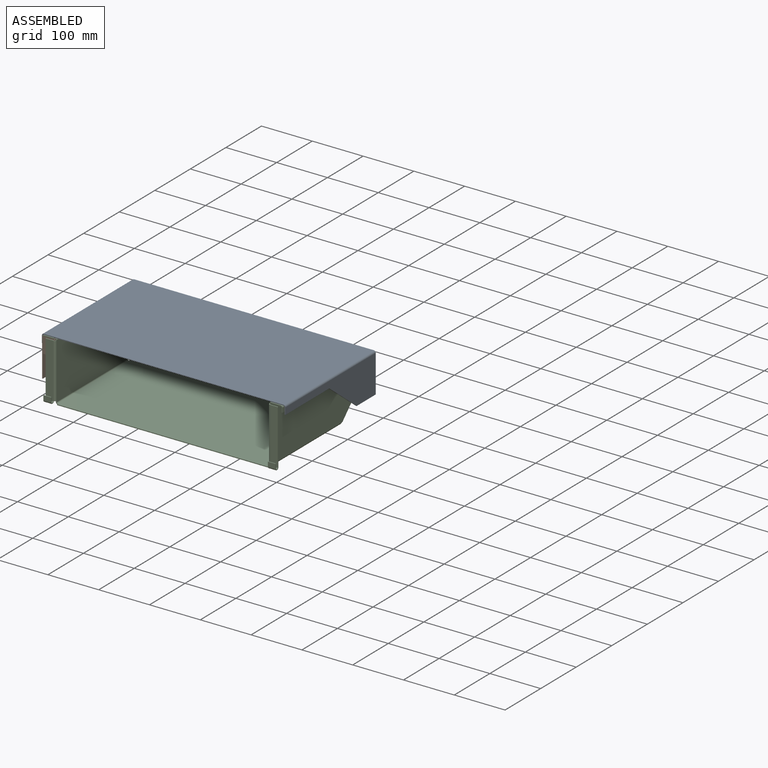
[diagram: assembled view]
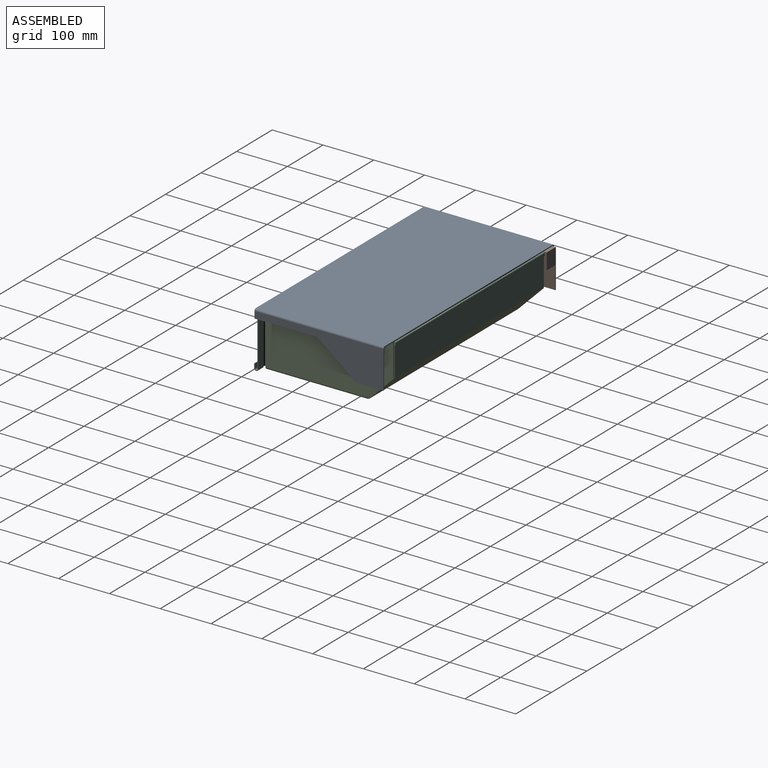
[diagram: assembled view, second angle]
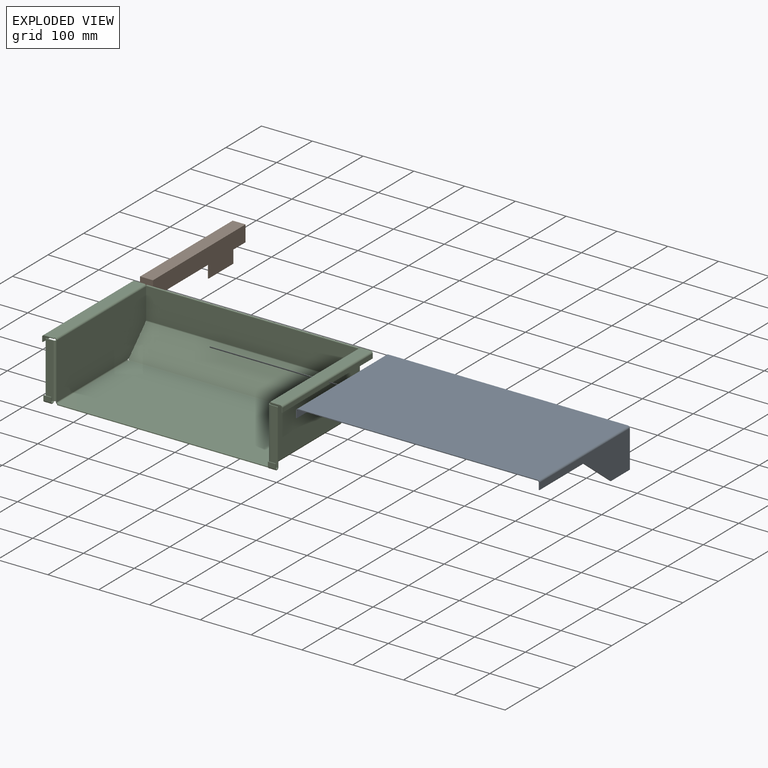
[diagram: exploded view]
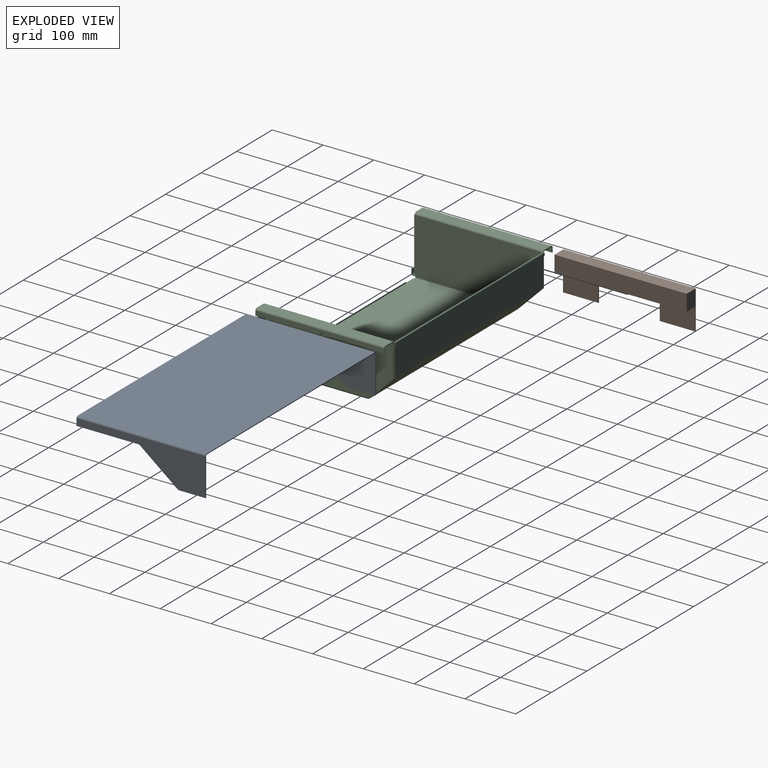
[diagram: exploded view, second angle]
ASSEMBLY  parts=3 mates=6
PART A: 26 faces, bbox 479.4x254x77.8 mm
  f0: plane 471.68x1.59mm, normal (0,1,0), area 748.8mm2, adj f2,f3,f11,f22
  f1: plane 471.68x1.59mm, normal (0,-1,0), area 748.8mm2, adj f2,f3,f12,f23
  f2: plane 471.68x254mm, normal (0,0,-1), area 119806.2mm2, adj f0,f1,f13,f24
  f3: plane 471.68x254mm, normal (0,0,1), area 119806.2mm2, adj f0,f1,f14,f25
  f4: plane 73.91x1.59mm, normal (0,1,0), area 117.3mm2, adj f5,f9,f10,f11
  f5: plane 53.6x1.59mm, normal (0,0,1), area 85.1mm2, adj f4,f6,f9,f10
  f6: plane 77.01x60.6mm, normal (0,-0.62,0.79), area 155.6mm2, adj f5,f7,f9,f10
  f7: plane 123.38x1.59mm, normal (0,0,1), area 195.9mm2, adj f6,f8,f9,f10
  f8: plane 13.31x1.59mm, normal (0,-1,0), area 21.1mm2, adj f7,f9,f10,f12
  f9: plane 254x73.91mm, normal (1,0,0), area 8963.3mm2, adj f4,f5,f6,f7,f8,f13
  f10: plane 254x73.91mm, normal (-1,0,0), area 8963.3mm2, adj f4,f5,f6,f7,f8,f14
  f11: plane 3.87x3.87mm, normal (0,1,0), area 7.7mm2, adj f0,f4,f13,f14
  f12: plane 3.87x3.87mm, normal (0,-1,0), area 7.7mm2, adj f1,f8,f13,f14
  f13: cylinder r=3.87mm len=254mm, axis (0,1,0), area 1545.5mm2, adj f2,f9,f11,f12
  f14: cylinder r=2.29mm len=254mm, axis (0,1,0), area 912.1mm2, adj f3,f10,f11,f12
  f15: plane 53.6x1.59mm, normal (0,0,1), area 85.1mm2, adj f16,f19,f20,f21
  f16: plane 73.91x1.59mm, normal (0,1,0), area 117.3mm2, adj f15,f20,f21,f22
  f17: plane 13.31x1.59mm, normal (0,-1,0), area 21.1mm2, adj f18,f20,f21,f23
  f18: plane 123.38x1.59mm, normal (0,0,1), area 195.9mm2, adj f17,f19,f20,f21
  f19: plane 77.01x60.6mm, normal (0,-0.62,0.79), area 155.6mm2, adj f15,f18,f20,f21
  f20: plane 254x73.91mm, normal (-1,0,0), area 8963.3mm2, adj f15,f16,f17,f18,f19,f24
  f21: plane 254x73.91mm, normal (1,0,0), area 8963.3mm2, adj f15,f16,f17,f18,f19,f25
  f22: plane 3.87x3.87mm, normal (0,1,0), area 7.7mm2, adj f0,f16,f24,f25
  f23: plane 3.87x3.87mm, normal (0,-1,0), area 7.7mm2, adj f1,f17,f24,f25
  f24: cylinder r=3.87mm len=254mm, axis (0,1,0), area 1545.5mm2, adj f2,f20,f22,f23
  f25: cylinder r=2.29mm len=254mm, axis (0,1,0), area 912.1mm2, adj f3,f21,f22,f23
PART B: 12 faces, bbox 25.4x260.4x76.2 mm
  f0: plane 260.35x25.4mm, normal (0,0,-1), area 6400mm2, adj f1,f3,f4,f5,f6,f7,f9,f10
  f1: plane 260.35x76.2mm, normal (1,0,0), area 14475.8mm2, adj f0,f2,f4,f5,f6,f8,f9,f11
  f2: plane 260.35x25.4mm, normal (0,0,1), area 6612.9mm2, adj f1,f3,f4,f5
  f3: plane 260.35x31.75mm, normal (-1,0,0), area 8266.1mm2, adj f0,f2,f4,f5
  f4: plane 76.2x25.4mm, normal (0,-1,0), area 874.2mm2, adj f0,f1,f2,f3,f7,f8
  f5: plane 76.2x25.4mm, normal (0,1,0), area 874.2mm2, adj f0,f1,f2,f3,f10,f11
  f6: plane 44.45x1.52mm, normal (0,1,0), area 67.7mm2, adj f0,f1,f7,f8
  f7: plane 69.85x44.45mm, normal (-1,0,0), area 3104.8mm2, adj f0,f4,f6,f8
  f8: plane 69.85x1.52mm, normal (0,0,-1), area 106.5mm2, adj f1,f4,f6,f7
  f9: plane 44.45x1.52mm, normal (0,-1,0), area 67.7mm2, adj f0,f1,f10,f11
  f10: plane 69.85x44.45mm, normal (-1,0,0), area 3104.8mm2, adj f0,f5,f9,f11
  f11: plane 69.85x1.52mm, normal (0,0,-1), area 106.5mm2, adj f1,f5,f9,f10
PART C: 138 faces, bbox 473.1x265.1x117.5 mm
  f0: plane 2.29x1.59mm, normal (-1,0,0), area 3.6mm2, adj f2,f3,f4,f33
  f1: plane 2.29x1.59mm, normal (1,0,0), area 3.6mm2, adj f2,f3,f4,f37
  f2: plane 414.53x1.59mm, normal (0,-1,0), area 658.1mm2, adj f0,f1,f3,f4
  f3: plane 414.53x202.25mm, normal (0,0,-1), area 83839.6mm2, adj f0,f1,f2,f26,f34,f38
  f4: plane 414.53x202.25mm, normal (0,0,1), area 83839.6mm2, adj f0,f1,f2,f27,f35,f39
  f5: plane 3.2x1.6mm, normal (-1,0,0), area 4mm2, adj f7,f8,f9,f14
  f6: plane 3.2x1.6mm, normal (1,0,0), area 4mm2, adj f7,f8,f11,f15
  f7: cylinder r=0.01mm len=419.05mm, axis (1,0,0), area 16.7mm2, adj f5,f6,f12,f16
  f8: cylinder r=1.6mm len=419.05mm, axis (1,0,0), area 2106.6mm2, adj f5,f6,f13,f17
  f9: plane 4.75x1.59mm, normal (-1,0,0), area 7.5mm2, adj f5,f10,f12,f13
  f10: plane 419.05x1.59mm, normal (0,0,-1), area 665.2mm2, adj f9,f11,f12,f13
  f11: plane 4.75x1.59mm, normal (1,0,0), area 7.5mm2, adj f6,f10,f12,f13
  f12: plane 419.05x4.75mm, normal (0,-1,0), area 1990.4mm2, adj f7,f9,f10,f11
  f13: plane 419.05x4.75mm, normal (0,1,0), area 1990.4mm2, adj f8,f9,f10,f11
  f14: plane 60.95x1.59mm, normal (-1,0,0), area 96.8mm2, adj f5,f16,f17,f28
  f15: plane 60.95x1.59mm, normal (1,0,0), area 96.8mm2, adj f6,f16,f17,f29
  f16: plane 419.05x60.95mm, normal (0,1,0), area 25542.3mm2, adj f7,f14,f15,f30
  f17: plane 419.05x60.95mm, normal (0,-1,0), area 25542.3mm2, adj f8,f14,f15,f31
  f18: plane 2.26x1.12mm, normal (0,-0.71,-0.71), area 3.6mm2, adj f20,f22,f23,f24
  f19: plane 50.58x50.58mm, normal (-1,0,0), area 111mm2, adj f21,f22,f23,f28
  f20: plane 50.58x50.58mm, normal (1,0,0), area 111mm2, adj f18,f22,f23,f29
  f21: plane 2.26x1.12mm, normal (0,-0.71,-0.71), area 3.6mm2, adj f19,f22,f23,f25
  f22: plane 419.05x49.46mm, normal (0,0.71,-0.71), area 29311.8mm2, adj f18,f19,f20,f21,f26,f30
  f23: plane 419.05x49.46mm, normal (0,-0.71,0.71), area 29311.8mm2, adj f18,f19,f20,f21,f27,f31
  f24: plane 2.74x2.26mm, normal (1,0,0), area 3.8mm2, adj f18,f26,f27,f36
  f25: plane 2.74x2.26mm, normal (-1,0,0), area 3.8mm2, adj f21,f26,f27,f32
  f26: cylinder r=3.87mm len=414.53mm, axis (1,0,0), area 1261.1mm2, adj f3,f22,f24,f25
  f27: cylinder r=2.29mm len=414.53mm, axis (1,0,0), area 744.3mm2, adj f4,f23,f24,f25
  f28: plane 2.74x2.26mm, normal (-1,0,0), area 3.8mm2, adj f14,f19,f30,f31
  f29: plane 2.74x2.26mm, normal (1,0,0), area 3.8mm2, adj f15,f20,f30,f31
  f30: cylinder r=3.87mm len=419.05mm, axis (-1,0,0), area 1274.8mm2, adj f16,f22,f28,f29
  f31: cylinder r=2.29mm len=419.05mm, axis (-1,0,0), area 752.4mm2, adj f17,f23,f28,f29
  f32: plane 3.87x3.87mm, normal (0,1,0), area 7.7mm2, adj f25,f34,f35,f71
  f33: plane 3.87x3.87mm, normal (0,-1,0), area 7.7mm2, adj f0,f34,f35,f74
  f34: cylinder r=3.87mm len=199.97mm, axis (0,1,0), area 1216.7mm2, adj f3,f32,f33,f75
  f35: cylinder r=2.29mm len=199.97mm, axis (0,1,0), area 718mm2, adj f4,f32,f33,f76
  f36: plane 3.87x3.87mm, normal (0,1,0), area 7.7mm2, adj f24,f38,f39,f43
  f37: plane 3.87x3.87mm, normal (0,-1,0), area 7.7mm2, adj f1,f38,f39,f40
  f38: cylinder r=3.87mm len=199.97mm, axis (0,1,0), area 1216.7mm2, adj f3,f36,f37,f44
  f39: cylinder r=2.29mm len=199.97mm, axis (0,1,0), area 718mm2, adj f4,f36,f37,f45
  f40: plane 2.29x1.59mm, normal (0,-1,0), area 3.6mm2, adj f37,f44,f45,f50
  f41: plane 48.52x48.52mm, normal (0,0.71,-0.71), area 108.9mm2, adj f42,f43,f44,f45
  f42: plane 61.2x1.59mm, normal (0,1,0), area 97.2mm2, adj f41,f44,f45,f107
  f43: plane 3.2x1.59mm, normal (0,0,-1), area 5.1mm2, adj f36,f41,f44,f45
  f44: plane 251.69x109.73mm, normal (1,0,0), area 26440mm2, adj f38,f40,f41,f42,f43,f53,f110
  f45: plane 251.69x109.73mm, normal (-1,0,0), area 26440mm2, adj f39,f40,f41,f42,f43,f52,f109
  f46: plane 107.44x1.59mm, normal (1,0,0), area 170.6mm2, adj f47,f48,f49,f55
  f47: plane 15.18x1.59mm, normal (0,0,1), area 24.1mm2, adj f46,f48,f49,f51
  f48: plane 107.44x15.18mm, normal (0,1,0), area 1630.6mm2, adj f46,f47,f53,f56
  f49: plane 107.44x15.18mm, normal (0,-1,0), area 1630.6mm2, adj f46,f47,f52,f57
  f50: plane 3.87x3.87mm, normal (0,0,-1), area 7.7mm2, adj f40,f52,f53,f54
  f51: plane 3.87x3.87mm, normal (0,0,1), area 7.7mm2, adj f47,f52,f53,f108
  f52: cylinder r=3.87mm len=107.44mm, axis (0,0,-1), area 653.7mm2, adj f45,f49,f50,f51
  f53: cylinder r=2.29mm len=107.44mm, axis (0,0,-1), area 385.8mm2, adj f44,f48,f50,f51
  f54: plane 3.87x3.87mm, normal (-1,0,0), area 7.7mm2, adj f50,f56,f57,f58
  f55: plane 3.87x3.87mm, normal (1,0,0), area 7.7mm2, adj f46,f56,f57,f59
  f56: cylinder r=3.87mm len=15.18mm, axis (-1,0,0), area 92.3mm2, adj f48,f54,f55,f60
  f57: cylinder r=2.29mm len=15.18mm, axis (-1,0,0), area 54.5mm2, adj f49,f54,f55,f61
  f58: plane 1.59x0.19mm, normal (-1,0,0), area 0.3mm2, adj f54,f60,f61,f63
  f59: plane 1.59x0.19mm, normal (1,0,0), area 0.3mm2, adj f55,f60,f61,f62
  f60: plane 15.18x0.19mm, normal (0,0,-1), area 2.9mm2, adj f56,f58,f59,f64
  f61: plane 15.18x0.19mm, normal (0,0,1), area 2.9mm2, adj f57,f58,f59,f65
  f62: plane 3.87x3.87mm, normal (1,0,0), area 7.7mm2, adj f59,f64,f65,f68
  f63: plane 3.87x3.87mm, normal (-1,0,0), area 7.7mm2, adj f58,f64,f65,f67
  f64: cylinder r=3.87mm len=15.18mm, axis (1,0,0), area 92.3mm2, adj f60,f62,f63,f69
  f65: cylinder r=2.29mm len=15.18mm, axis (1,0,0), area 54.5mm2, adj f61,f62,f63,f70
  f66: plane 15.18x1.59mm, normal (0,0,1), area 24.1mm2, adj f67,f68,f69,f70
  f67: plane 8.83x1.59mm, normal (-1,0,0), area 14mm2, adj f63,f66,f69,f70
  f68: plane 8.83x1.59mm, normal (1,0,0), area 14mm2, adj f62,f66,f69,f70
  f69: plane 15.18x8.83mm, normal (0,-1,0), area 134mm2, adj f64,f66,f67,f68
  f70: plane 15.18x8.83mm, normal (0,1,0), area 134mm2, adj f65,f66,f67,f68
  f71: plane 3.2x1.59mm, normal (0,0,-1), area 5.1mm2, adj f32,f73,f75,f76
  f72: plane 61.2x1.59mm, normal (0,1,0), area 97.2mm2, adj f73,f75,f76,f125
  f73: plane 48.52x48.52mm, normal (0,0.71,-0.71), area 108.9mm2, adj f71,f72,f75,f76
  f74: plane 2.29x1.59mm, normal (0,-1,0), area 3.6mm2, adj f33,f75,f76,f82
  f75: plane 251.69x109.73mm, normal (-1,0,0), area 26440mm2, adj f34,f71,f72,f73,f74,f84,f128
  f76: plane 251.69x109.73mm, normal (1,0,0), area 26440mm2, adj f35,f71,f72,f73,f74,f83,f127
  f77: plane 107.44x1.59mm, normal (-1,0,0), area 170.6mm2, adj f78,f79,f80,f86
  f78: plane 15.18x1.59mm, normal (0,0,1), area 24.1mm2, adj f77,f79,f80,f81
  f79: plane 107.44x15.18mm, normal (0,1,0), area 1630.6mm2, adj f77,f78,f84,f87
  f80: plane 107.44x15.18mm, normal (0,-1,0), area 1630.6mm2, adj f77,f78,f83,f88
  f81: plane 3.87x3.87mm, normal (0,0,1), area 7.7mm2, adj f78,f83,f84,f126
  f82: plane 3.87x3.87mm, normal (0,0,-1), area 7.7mm2, adj f74,f83,f84,f85
  f83: cylinder r=3.87mm len=107.44mm, axis (0,0,1), area 653.7mm2, adj f76,f80,f81,f82
  f84: cylinder r=2.29mm len=107.44mm, axis (0,0,1), area 385.8mm2, adj f75,f79,f81,f82
  f85: plane 3.87x3.87mm, normal (1,0,0), area 7.7mm2, adj f82,f87,f88,f90
  f86: plane 3.87x3.87mm, normal (-1,0,0), area 7.7mm2, adj f77,f87,f88,f89
  f87: cylinder r=3.87mm len=15.18mm, axis (1,0,0), area 92.3mm2, adj f79,f85,f86,f91
  f88: cylinder r=2.29mm len=15.18mm, axis (1,0,0), area 54.5mm2, adj f80,f85,f86,f92
  f89: plane 1.59x0.19mm, normal (-1,0,0), area 0.3mm2, adj f86,f91,f92,f94
  f90: plane 1.59x0.19mm, normal (1,0,0), area 0.3mm2, adj f85,f91,f92,f93
  f91: plane 15.18x0.19mm, normal (0,0,-1), area 2.9mm2, adj f87,f89,f90,f95
  f92: plane 15.18x0.19mm, normal (0,0,1), area 2.9mm2, adj f88,f89,f90,f96
  f93: plane 3.87x3.87mm, normal (1,0,0), area 7.7mm2, adj f90,f95,f96,f99
  f94: plane 3.87x3.87mm, normal (-1,0,0), area 7.7mm2, adj f89,f95,f96,f98
  f95: cylinder r=3.87mm len=15.18mm, axis (1,0,0), area 92.3mm2, adj f91,f93,f94,f100
  f96: cylinder r=2.29mm len=15.18mm, axis (1,0,0), area 54.5mm2, adj f92,f93,f94,f101
  f97: plane 15.18x1.59mm, normal (0,0,1), area 24.1mm2, adj f98,f99,f100,f101
  f98: plane 8.83x1.59mm, normal (-1,0,0), area 14mm2, adj f94,f97,f100,f101
  f99: plane 8.83x1.59mm, normal (1,0,0), area 14mm2, adj f93,f97,f100,f101
  f100: plane 15.18x8.83mm, normal (0,-1,0), area 134mm2, adj f95,f97,f98,f99
  f101: plane 15.18x8.83mm, normal (0,1,0), area 134mm2, adj f96,f97,f98,f99
  f102: plane 19.24x1.59mm, normal (0,-1,0), area 30.5mm2, adj f103,f105,f106,f111
  f103: plane 2.29x1.59mm, normal (-1,0,0), area 3.6mm2, adj f102,f105,f106,f108
  f104: plane 19.24x1.59mm, normal (0,1,0), area 30.5mm2, adj f105,f106,f107,f112
  f105: plane 253.97x19.24mm, normal (0,0,-1), area 4886.6mm2, adj f102,f103,f104,f110,f114
  f106: plane 253.97x19.24mm, normal (0,0,1), area 4886.6mm2, adj f102,f103,f104,f109,f113
  f107: plane 3.87x3.87mm, normal (0,1,0), area 7.7mm2, adj f42,f104,f109,f110
  f108: plane 3.87x3.87mm, normal (0,-1,0), area 7.7mm2, adj f51,f103,f109,f110
  f109: cylinder r=3.87mm len=251.69mm, axis (0,1,0), area 1531.4mm2, adj f45,f106,f107,f108
  f110: cylinder r=2.29mm len=251.69mm, axis (0,1,0), area 903.8mm2, adj f44,f105,f107,f108
  f111: plane 3.87x3.87mm, normal (0,-1,0), area 7.7mm2, adj f102,f113,f114,f116
  f112: plane 3.87x3.87mm, normal (0,1,0), area 7.7mm2, adj f104,f113,f114,f117
  f113: cylinder r=3.87mm len=253.97mm, axis (0,-1,0), area 1545.3mm2, adj f106,f111,f112,f119
  f114: cylinder r=2.29mm len=253.97mm, axis (0,-1,0), area 912mm2, adj f105,f111,f112,f118
  f115: plane 253.97x1.59mm, normal (0,0,-1), area 403.2mm2, adj f116,f117,f118,f119
  f116: plane 8.83x1.59mm, normal (0,-1,0), area 14mm2, adj f111,f115,f118,f119
  f117: plane 8.83x1.59mm, normal (0,1,0), area 14mm2, adj f112,f115,f118,f119
  f118: plane 253.97x8.83mm, normal (-1,0,0), area 2241.7mm2, adj f114,f115,f116,f117
  f119: plane 253.97x8.83mm, normal (1,0,0), area 2241.7mm2, adj f113,f115,f116,f117
  f120: plane 2.29x1.59mm, normal (1,0,0), area 3.6mm2, adj f122,f123,f124,f126
  f121: plane 19.24x1.59mm, normal (0,1,0), area 30.5mm2, adj f123,f124,f125,f129
  f122: plane 19.24x1.59mm, normal (0,-1,0), area 30.5mm2, adj f120,f123,f124,f130
  f123: plane 253.97x19.24mm, normal (0,0,-1), area 4886.6mm2, adj f120,f121,f122,f128,f132
  f124: plane 253.97x19.24mm, normal (0,0,1), area 4886.6mm2, adj f120,f121,f122,f127,f131
  f125: plane 3.87x3.87mm, normal (0,1,0), area 7.7mm2, adj f72,f121,f127,f128
  f126: plane 3.87x3.87mm, normal (0,-1,0), area 7.7mm2, adj f81,f120,f127,f128
  f127: cylinder r=3.87mm len=251.69mm, axis (0,1,0), area 1531.4mm2, adj f76,f124,f125,f126
  f128: cylinder r=2.29mm len=251.69mm, axis (0,1,0), area 903.8mm2, adj f75,f123,f125,f126
  f129: plane 3.87x3.87mm, normal (0,1,0), area 7.7mm2, adj f121,f131,f132,f134
  f130: plane 3.87x3.87mm, normal (0,-1,0), area 7.7mm2, adj f122,f131,f132,f135
  f131: cylinder r=3.87mm len=253.97mm, axis (0,1,0), area 1545.3mm2, adj f124,f129,f130,f137
  f132: cylinder r=2.29mm len=253.97mm, axis (0,1,0), area 912mm2, adj f123,f129,f130,f136
  f133: plane 253.97x1.59mm, normal (0,0,-1), area 403.2mm2, adj f134,f135,f136,f137
  f134: plane 8.83x1.59mm, normal (0,1,0), area 14mm2, adj f129,f133,f136,f137
  f135: plane 8.83x1.59mm, normal (0,-1,0), area 14mm2, adj f130,f133,f136,f137
  f136: plane 253.97x8.83mm, normal (1,0,0), area 2241.7mm2, adj f132,f133,f134,f135
  f137: plane 253.97x8.83mm, normal (-1,0,0), area 2241.7mm2, adj f131,f133,f134,f135
PLACE A rot(axis=(0,1,0),180deg) t=(-478.08,-95,109.76)mm
PLACE B rot(axis=(0,0,-1),180deg) t=(-478.08,-76.35,76.42)mm
PLACE C t=(-31.99,-76.35,-6.13)mm
MATE planar C.f137 <-> A.f10  axis (-1,0,0) through (-478.08,50.63,101.47)mm
MATE planar B.f5 <-> C.f79  axis (0,-1,0) through (-466.3,-76.35,89.34)mm
MATE planar B.f3 <-> C.f75  axis (1,0,0) through (-452.68,53.82,76.42)mm
MATE planar B.f2 <-> C.f123  axis (0,0,1) through (-478.08,184,108.17)mm
MATE planar A.f4 <-> C.f16  axis (0,1,0) through (-478.87,179.23,70.52)mm
MATE planar A.f3 <-> C.f124  axis (0,0,-1) through (-239.95,52.23,109.76)mm
